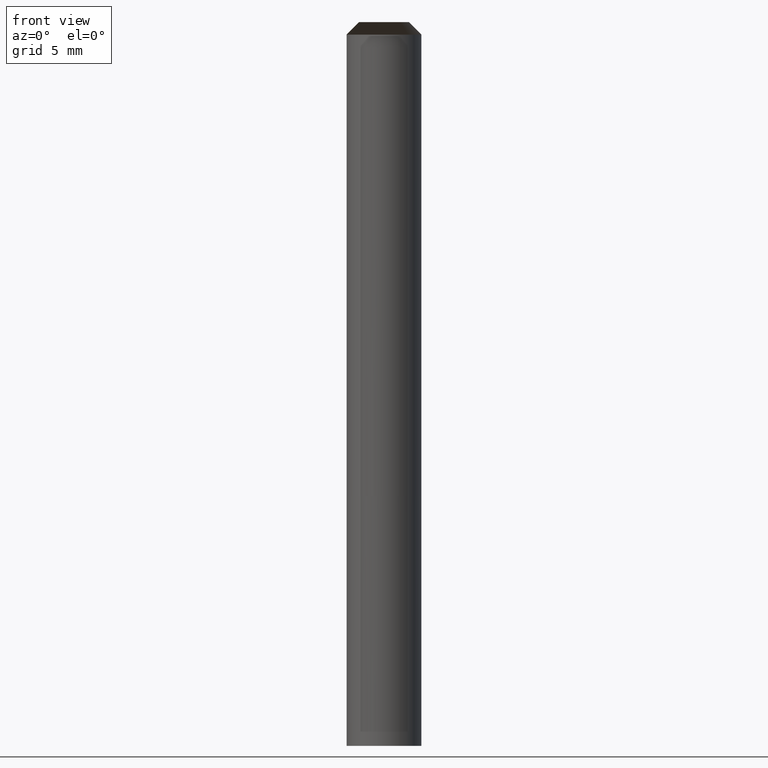
[diagram: clean part render]
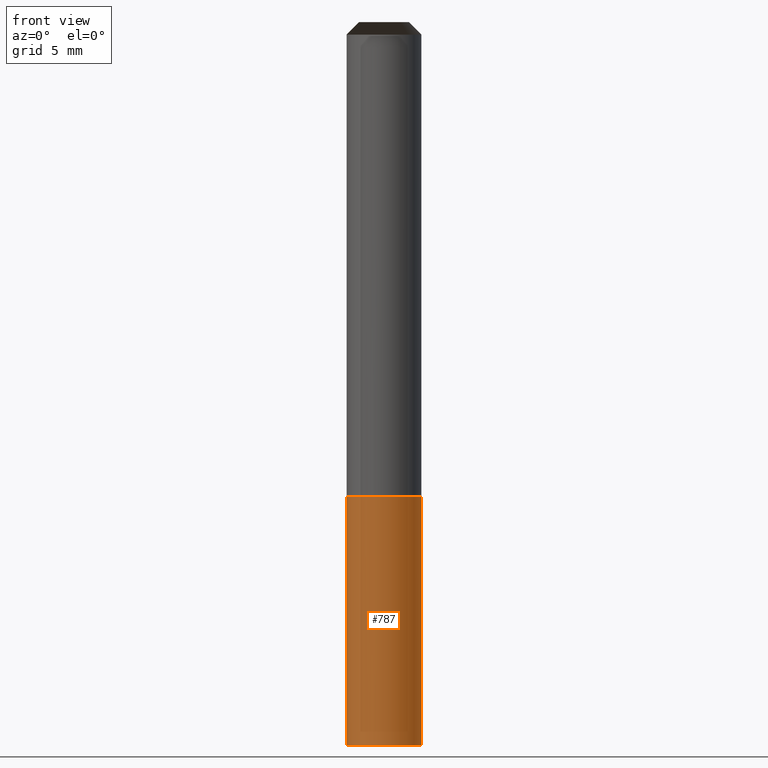
[diagram: same view with one face highlighted and labeled with its STEP entity id]
A machine part, front view. The second image highlights one B-rep face of the part: STEP entity #787.
In plain terms, the highlighted face is a freeform B-spline surface patch.
Its self-contained STEP definition (entity closure, byte-faithful):
#109=CARTESIAN_POINT('',(0.0,-3.0,-20.0));
#663=CARTESIAN_POINT('',(3.0,0.0,-20.0));
#666=CARTESIAN_POINT('',(-3.0,0.0,-20.0));
#667=CARTESIAN_POINT('',(3.0,0.0,0.0));
#671=CARTESIAN_POINT('',(-3.0,0.0,0.0));
#673=CARTESIAN_POINT('',(-3.0,-3.0,-20.0));
#674=CARTESIAN_POINT('',(3.0,-3.0,-20.0));
#675=CARTESIAN_POINT('',(-3.0,-3.0,0.0));
#676=CARTESIAN_POINT('',(0.0,-3.0,0.0));
#677=CARTESIAN_POINT('',(3.0,-3.0,0.0));
#768=(
BOUNDED_SURFACE()
B_SPLINE_SURFACE(1,2,(
(#666,#673,#109,#674,#663),
(#671,#675,#676,#677,#667)
), .UNSPECIFIED.,.F.,.F.,.F.)
B_SPLINE_SURFACE_WITH_KNOTS((2,2),(3,2,3),(
0.0,1.0),(
0.0,0.5,1.0), .UNSPECIFIED.)
GEOMETRIC_REPRESENTATION_ITEM()
RATIONAL_B_SPLINE_SURFACE(((1.0,0.707106781187,1.0,0.707106781187,1.0),
(1.0,0.707106781187,1.0,0.707106781187,1.0)
))
REPRESENTATION_ITEM('')
SURFACE()
);
#769=(
BOUNDED_CURVE()
B_SPLINE_CURVE(2,(#663,#674,#109,#673,#666),.UNSPECIFIED.,.F.,.F.)
B_SPLINE_CURVE_WITH_KNOTS((3,2,3),
(0.0,0.5,1.0),.UNSPECIFIED.)
CURVE()
GEOMETRIC_REPRESENTATION_ITEM()
RATIONAL_B_SPLINE_CURVE((1.0,0.707106781187,1.0,0.707106781187,1.0))
REPRESENTATION_ITEM('')
);
#770=(
BOUNDED_CURVE()
B_SPLINE_CURVE(1,(#666,#671),.UNSPECIFIED.,.F.,.F.)
B_SPLINE_CURVE_WITH_KNOTS((2,2),
(0.0,1.0),.UNSPECIFIED.)
CURVE()
GEOMETRIC_REPRESENTATION_ITEM()
RATIONAL_B_SPLINE_CURVE((1.0,1.0))
REPRESENTATION_ITEM('')
);
#771=(
BOUNDED_CURVE()
B_SPLINE_CURVE(2,(#671,#675,#676,#677,#667),.UNSPECIFIED.,.F.,.F.)
B_SPLINE_CURVE_WITH_KNOTS((3,2,3),
(0.0,0.5,1.0),.UNSPECIFIED.)
CURVE()
GEOMETRIC_REPRESENTATION_ITEM()
RATIONAL_B_SPLINE_CURVE((1.0,0.707106781187,1.0,0.707106781187,1.0))
REPRESENTATION_ITEM('')
);
#772=(
BOUNDED_CURVE()
B_SPLINE_CURVE(1,(#667,#663),.UNSPECIFIED.,.F.,.F.)
B_SPLINE_CURVE_WITH_KNOTS((2,2),
(0.0,1.0),.UNSPECIFIED.)
CURVE()
GEOMETRIC_REPRESENTATION_ITEM()
RATIONAL_B_SPLINE_CURVE((1.0,1.0))
REPRESENTATION_ITEM('')
);
#773=VERTEX_POINT('',#663);
#774=VERTEX_POINT('',#666);
#775=VERTEX_POINT('',#667);
#776=VERTEX_POINT('',#671);
#777=EDGE_CURVE('',#773,#774,#769,.T.);
#778=EDGE_CURVE('',#774,#776,#770,.T.);
#779=EDGE_CURVE('',#776,#775,#771,.T.);
#780=EDGE_CURVE('',#775,#773,#772,.T.);
#781=ORIENTED_EDGE('',*,*,#777,.T.);
#782=ORIENTED_EDGE('',*,*,#778,.T.);
#783=ORIENTED_EDGE('',*,*,#779,.T.);
#784=ORIENTED_EDGE('',*,*,#780,.T.);
#785=EDGE_LOOP('',(#781,#782,#783,#784));
#786=FACE_OUTER_BOUND('',#785,.T.);
#787=ADVANCED_FACE('',(#786),#768,.T.);